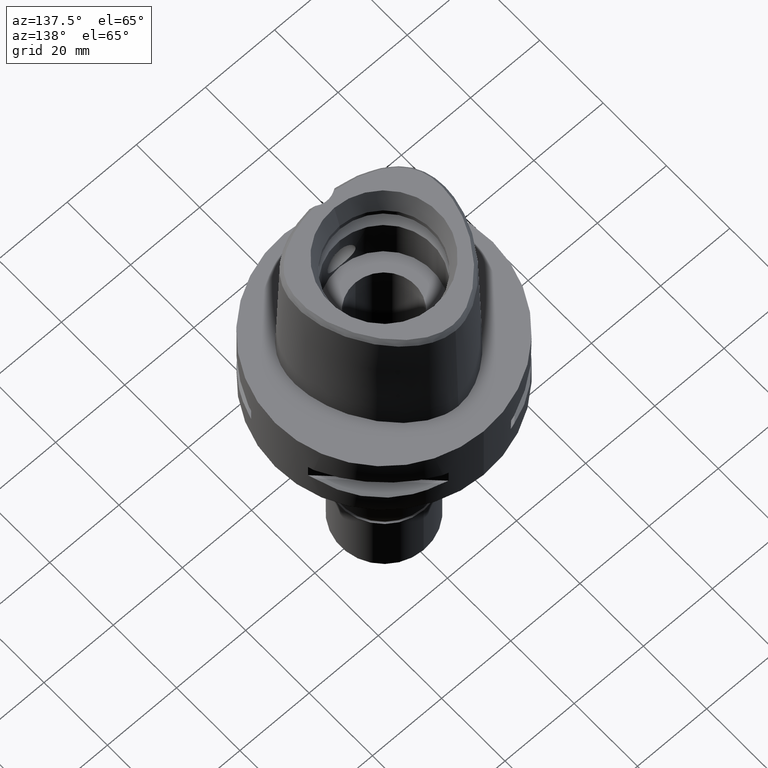
[diagram: clean part render]
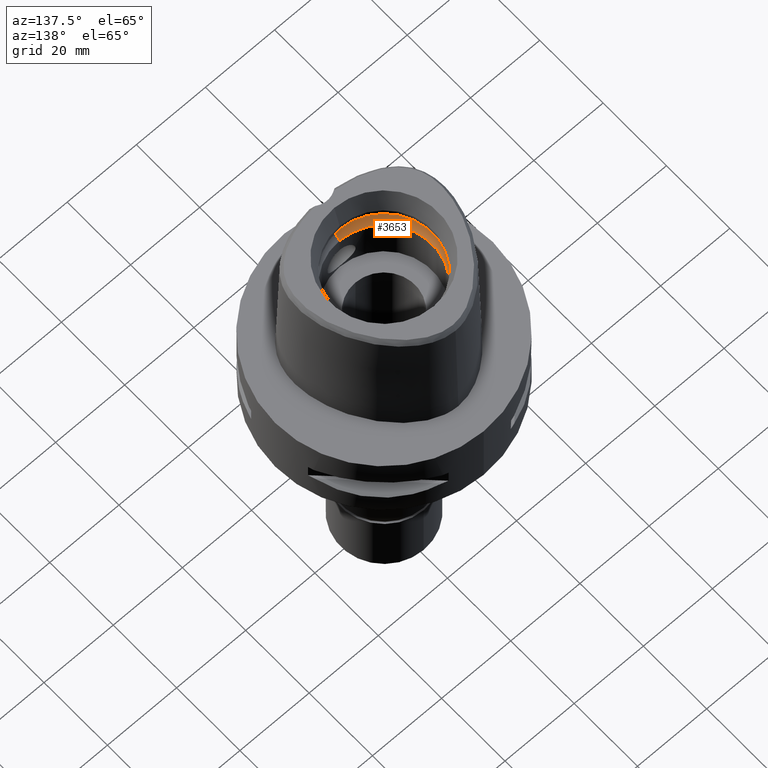
[diagram: same view with one face highlighted and labeled with its STEP entity id]
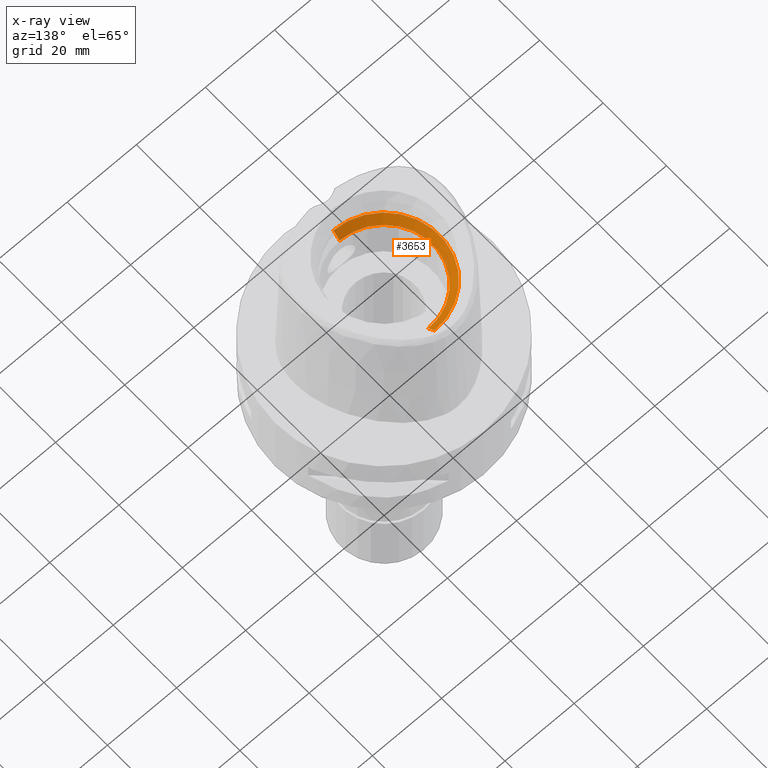
[diagram: x-ray of the same camera — body ghosted, the highlighted face saturated]
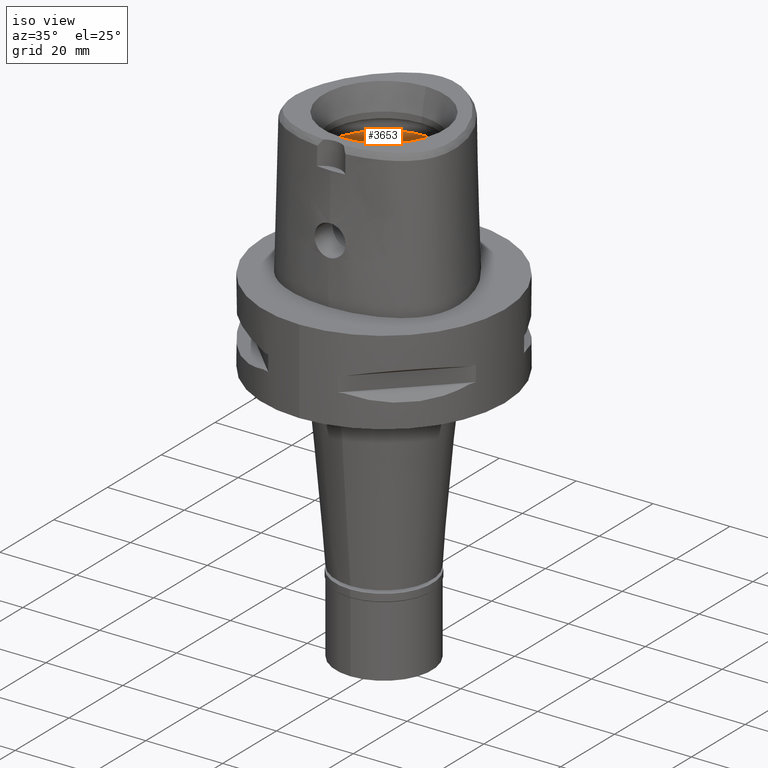
[diagram: same view with one face highlighted and labeled with its STEP entity id]
A machine part, auxiliary view. The second image highlights one B-rep face of the part: STEP entity #3653.
The next image is the same camera in x-ray: the body ghosted, the highlighted face saturated — about 0% of this face is hidden behind the body in this view.
A second angle (iso view) of the same face is appended — the face is thin or edge-on in the first view.
In plain terms, the highlighted conical surface has half-angle 45 deg.
Its self-contained STEP definition (entity closure, byte-faithful):
#424 = LINE ( 'NONE', #2047, #3050 ) ;
#546 = DIRECTION ( 'NONE',  ( 0.0000000000000000000, 1.000000000000000000, 0.0000000000000000000 ) ) ;
#1071 = EDGE_LOOP ( 'NONE', ( #2959, #4140, #4817, #4663 ) ) ;
#1500 = VERTEX_POINT ( 'NONE', #2671 ) ;
#1552 = CARTESIAN_POINT ( 'NONE',  ( 0.0000000000000000000, 16.00000000000000000, 26.20000000000000284 ) ) ;
#1596 = VERTEX_POINT ( 'NONE', #3418 ) ;
#1700 = DIRECTION ( 'NONE',  ( 0.0000000000000000000, 0.0000000000000000000, 1.000000000000000000 ) ) ;
#1773 = CARTESIAN_POINT ( 'NONE',  ( 0.0000000000000000000, 0.0000000000000000000, 26.20000000000000284 ) ) ;
#1810 = VERTEX_POINT ( 'NONE', #1552 ) ;
#2047 = CARTESIAN_POINT ( 'NONE',  ( 0.0000000000000000000, 14.00000000000000000, 24.19999999999999929 ) ) ;
#2092 = DIRECTION ( 'NONE',  ( 0.0000000000000000000, 0.0000000000000000000, 1.000000000000000000 ) ) ;
#2162 = EDGE_CURVE ( 'NONE', #2437, #1500, #3551, .T. ) ;
#2437 = VERTEX_POINT ( 'NONE', #3111 ) ;
#2671 = CARTESIAN_POINT ( 'NONE',  ( 0.0000000000000000000, -14.00000000000000000, 24.19999999999999929 ) ) ;
#2959 = ORIENTED_EDGE ( 'NONE', *, *, #2162, .F. ) ;
#3024 = CONICAL_SURFACE ( 'NONE', #3106, 15.00000000000000000, 0.7853981633972997312 ) ;
#3050 = VECTOR ( 'NONE', #4343, 1000.000000000000114 ) ;
#3100 = EDGE_CURVE ( 'NONE', #2437, #1810, #424, .T. ) ;
#3106 = AXIS2_PLACEMENT_3D ( 'NONE', #3255, #1700, #3659 ) ;
#3111 = CARTESIAN_POINT ( 'NONE',  ( 0.0000000000000000000, 14.00000000000000000, 24.19999999999999929 ) ) ;
#3255 = CARTESIAN_POINT ( 'NONE',  ( 0.0000000000000000000, 0.0000000000000000000, 25.19999999999999929 ) ) ;
#3256 = DIRECTION ( 'NONE',  ( 0.0000000000000000000, 0.0000000000000000000, -1.000000000000000000 ) ) ;
#3264 = CARTESIAN_POINT ( 'NONE',  ( 0.0000000000000000000, 0.0000000000000000000, 24.19999999999999929 ) ) ;
#3305 = AXIS2_PLACEMENT_3D ( 'NONE', #3264, #2092, #546 ) ;
#3322 = DIRECTION ( 'NONE',  ( 0.0000000000000000000, -1.000000000000000000, 0.0000000000000000000 ) ) ;
#3418 = CARTESIAN_POINT ( 'NONE',  ( 0.0000000000000000000, -16.00000000000000000, 26.20000000000000284 ) ) ;
#3551 = CIRCLE ( 'NONE', #3305, 14.00000000000000000 ) ;
#3570 = LINE ( 'NONE', #4316, #3955 ) ;
#3628 = AXIS2_PLACEMENT_3D ( 'NONE', #1773, #3256, #3322 ) ;
#3653 = ADVANCED_FACE ( 'NONE', ( #4403 ), #3024, .F. ) ;
#3659 = DIRECTION ( 'NONE',  ( 0.0000000000000000000, 1.000000000000000000, 0.0000000000000000000 ) ) ;
#3955 = VECTOR ( 'NONE', #4731, 1000.000000000000114 ) ;
#4140 = ORIENTED_EDGE ( 'NONE', *, *, #3100, .T. ) ;
#4316 = CARTESIAN_POINT ( 'NONE',  ( 0.0000000000000000000, -14.00000000000000000, 24.19999999999999929 ) ) ;
#4343 = DIRECTION ( 'NONE',  ( 0.0000000000000000000, 0.7071067811865474617, 0.7071067811865474617 ) ) ;
#4403 = FACE_OUTER_BOUND ( 'NONE', #1071, .T. ) ;
#4481 = EDGE_CURVE ( 'NONE', #1500, #1596, #3570, .T. ) ;
#4663 = ORIENTED_EDGE ( 'NONE', *, *, #4481, .F. ) ;
#4731 = DIRECTION ( 'NONE',  ( 0.0000000000000000000, -0.7071067811865474617, 0.7071067811865474617 ) ) ;
#4777 = CIRCLE ( 'NONE', #3628, 16.00000000000000000 ) ;
#4807 = EDGE_CURVE ( 'NONE', #1596, #1810, #4777, .T. ) ;
#4817 = ORIENTED_EDGE ( 'NONE', *, *, #4807, .F. ) ;